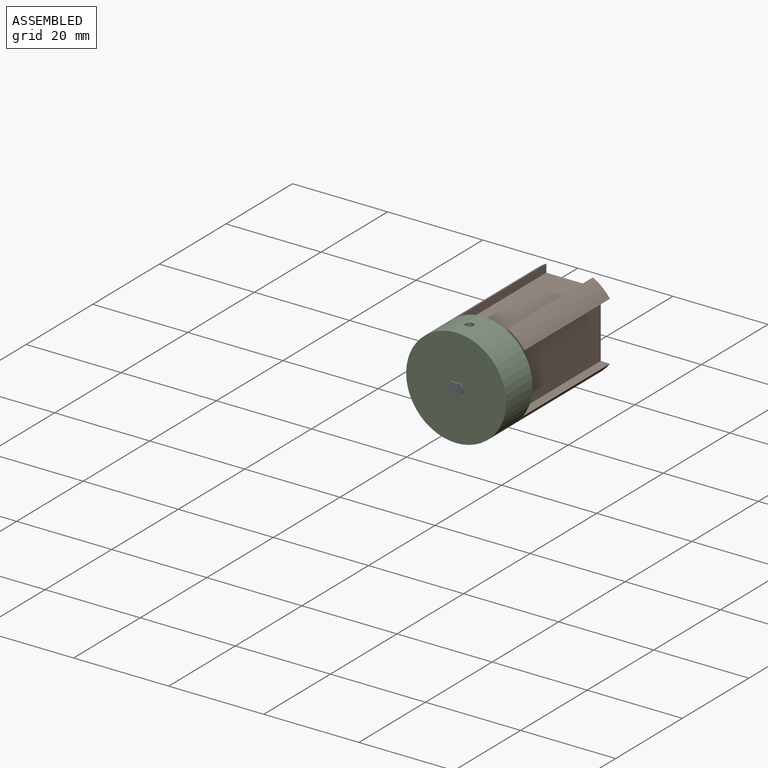
[diagram: assembled view]
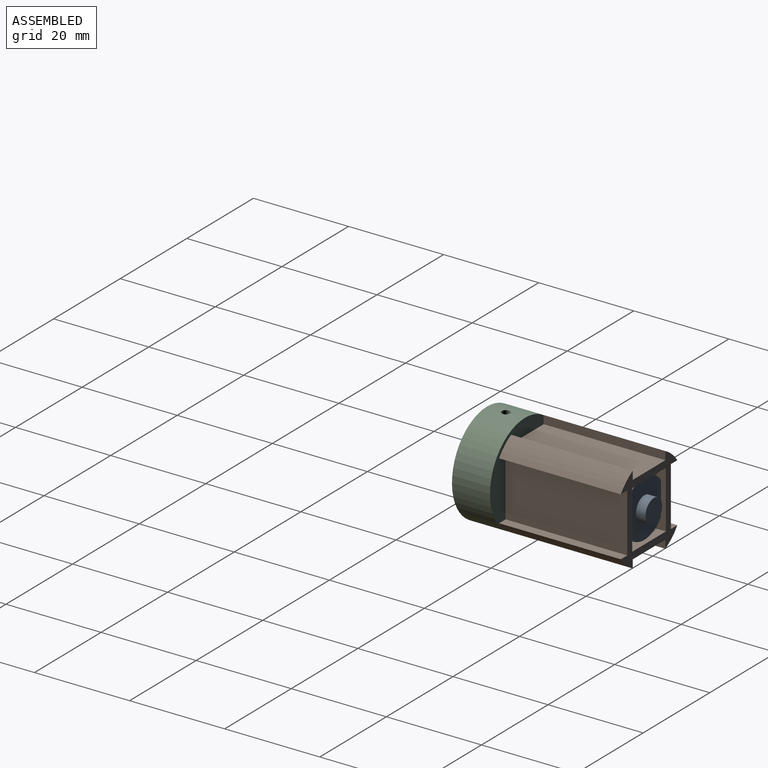
[diagram: assembled view, second angle]
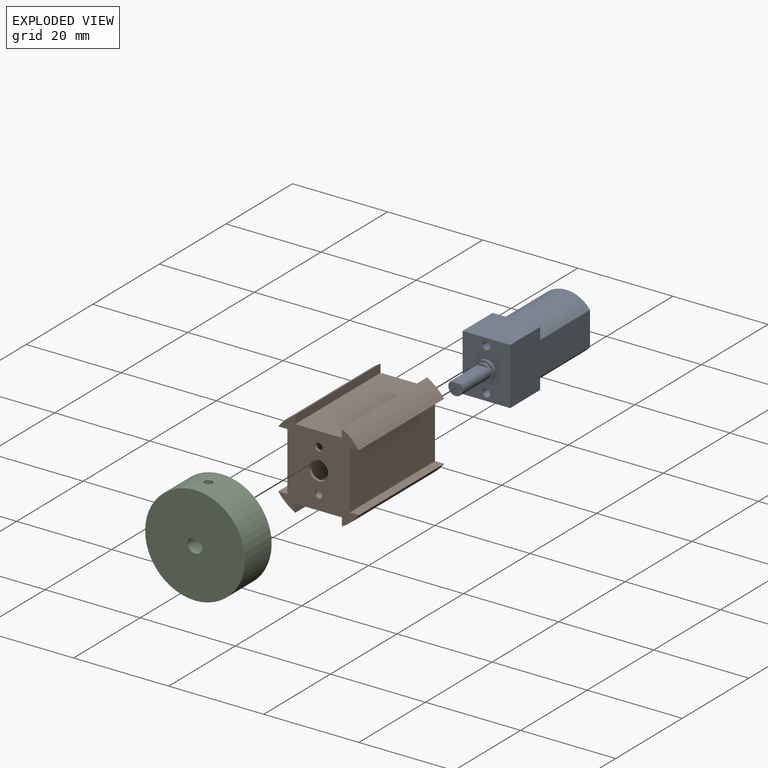
[diagram: exploded view]
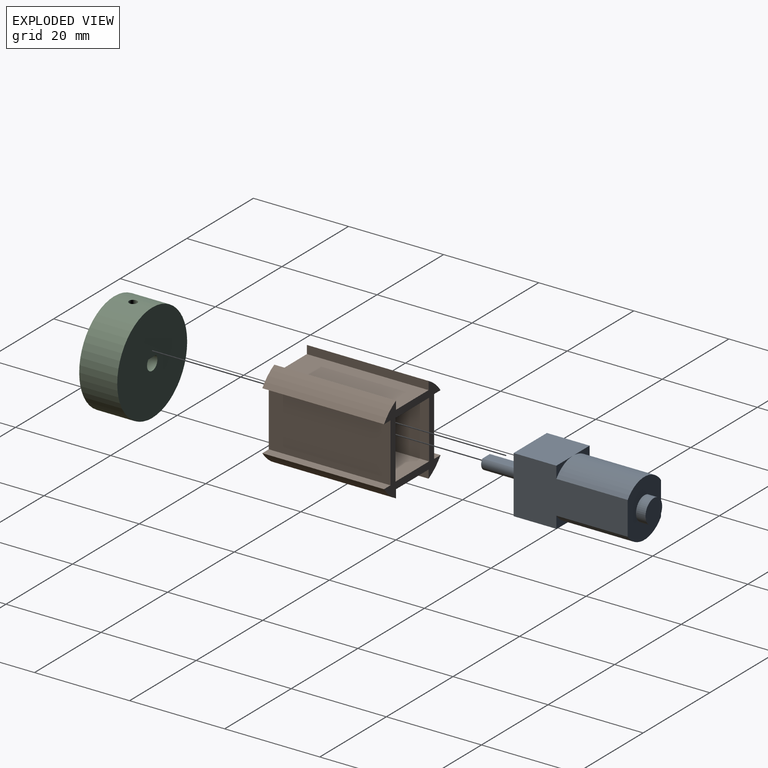
[diagram: exploded view, second angle]
ASSEMBLY  parts=3 mates=5
PART A: 24 faces, bbox 10x35.3x12 mm
  f0: plane 12x10mm, normal (0,-1,0), area 104mm2, adj f5,f6,f7,f8,f10,f21,f23
  f1: cylinder r=1.5mm len=8.67mm, axis (0,1,0), area 61.1mm2, adj f11,f12,f18,f19
  f2: plane 5x2.5mm, normal (0,1,0), area 3.8mm2, adj f5,f8,f13
  f3: plane 5x2.5mm, normal (0,1,0), area 3.8mm2, adj f7,f8,f13
  f4: plane 5x2.5mm, normal (0,1,0), area 3.8mm2, adj f6,f7,f14
  f5: plane 24x12mm, normal (-1,0,0), area 213mm2, adj f0,f2,f6,f8,f9,f13,f14,f15
  f6: plane 10x9mm, normal (0,0,-1), area 90mm2, adj f0,f4,f5,f7,f9
  f7: plane 24x12mm, normal (1,0,0), area 213mm2, adj f0,f3,f4,f6,f8,f13,f14,f15
  f8: plane 10x9mm, normal (0,0,1), area 90mm2, adj f0,f2,f3,f5,f7
  f9: plane 5x2.5mm, normal (0,1,0), area 3.8mm2, adj f5,f6,f14
  f10: cylinder r=1.95mm len=3.9mm, axis (0,1,0), area 7.4mm2, adj f0,f11
  f11: plane 3.9x3.9mm, normal (0,-1,0), area 4.9mm2, adj f1,f10
  f12: plane 3x2.5mm, normal (0,-1,0), area 6.3mm2, adj f1,f19
  f13: cylinder r=6.25mm len=15mm, axis (0,-1,0), area 173.9mm2, adj f2,f3,f5,f7,f15
  f14: cylinder r=6.25mm len=15mm, axis (0,-1,0), area 173.9mm2, adj f4,f5,f7,f9,f15
  f15: plane 12x10mm, normal (0,1,0), area 85.3mm2, adj f5,f7,f13,f14,f16
  f16: cylinder r=2.5mm len=5mm, axis (0,-1,0), area 31.4mm2, adj f15,f17
  f17: plane 5x5mm, normal (0,1,0), area 19.6mm2, adj f16
  f18: plane 2.24x0.5mm, normal (0,-1,0), area 0.8mm2, adj f1,f19
  f19: plane 8.17x2.24mm, normal (0,0,1), area 18.3mm2, adj f1,f12,f18
  f20: plane 1.6x1.6mm, normal (0,-1,0), area 2mm2, adj f21
  f21: cylinder r=0.8mm len=9mm, axis (0,-1,0), area 45.2mm2, adj f0,f20
  f22: plane 1.6x1.6mm, normal (0,-1,0), area 2mm2, adj f23
  f23: cylinder r=0.8mm len=9mm, axis (0,-1,0), area 45.2mm2, adj f0,f22
PART B: 26 faces, bbox 17x25.6x18.6 mm
  f0: plane 12.1x10.1mm, normal (0,1,0), area 105.6mm2, adj f16,f17,f19,f21,f22,f23,f24
  f1: plane 25.6x1.74mm, normal (1,0,0), area 44.5mm2, adj f2,f18,f20,f25
  f2: cylinder r=10.5mm len=25.6mm, axis (0,1,0), area 122.8mm2, adj f1,f3,f20,f25
  f3: plane 25.6x1.94mm, normal (0,0,-1), area 49.8mm2, adj f2,f4,f20,f25
  f4: plane 25.6x12.34mm, normal (-1,0,0), area 316mm2, adj f3,f5,f20,f25
  f5: plane 25.6x1.94mm, normal (0,0,1), area 49.8mm2, adj f4,f6,f20,f25
  f6: cylinder r=10.5mm len=25.6mm, axis (0,1,0), area 122.8mm2, adj f5,f7,f20,f25
  f7: plane 25.6x1.74mm, normal (1,0,0), area 44.5mm2, adj f6,f8,f20,f25
  f8: plane 25.6x9.8mm, normal (0,0,-1), area 250.8mm2, adj f7,f9,f20,f25
  f9: plane 25.6x1.74mm, normal (-1,0,0), area 44.5mm2, adj f8,f10,f20,f25
  f10: cylinder r=10.5mm len=25.6mm, axis (0,1,0), area 122.8mm2, adj f9,f11,f20,f25
  f11: plane 25.6x1.94mm, normal (0,0,1), area 49.8mm2, adj f10,f12,f20,f25
  f12: plane 25.6x12.34mm, normal (1,0,0), area 316mm2, adj f11,f13,f20,f25
  f13: plane 25.6x1.94mm, normal (0,0,-1), area 49.8mm2, adj f12,f14,f20,f25
  f14: cylinder r=10.5mm len=25.6mm, axis (0,1,0), area 122.8mm2, adj f13,f15,f20,f25
  f15: plane 25.6x1.74mm, normal (-1,0,0), area 44.5mm2, adj f14,f18,f20,f25
  f16: cylinder r=0.8mm len=1.6mm, axis (0,1,0), area 3mm2, adj f0,f20
  f17: cylinder r=0.8mm len=1.6mm, axis (0,1,0), area 3mm2, adj f0,f20
  f18: plane 25.6x9.8mm, normal (0,0,1), area 250.8mm2, adj f1,f15,f20,f25
  f19: cylinder r=2mm len=4mm, axis (0,1,0), area 7.5mm2, adj f0,f20
  f20: plane 18.57x16.99mm, normal (0,-1,0), area 198mm2, adj f1,f2,f3,f4,f5,f6,f7,f8
  f21: plane 25x12.1mm, normal (1,0,0), area 302.5mm2, adj f0,f22,f24,f25
  f22: plane 25x10.1mm, normal (0,0,-1), area 252.5mm2, adj f0,f21,f23,f25
  f23: plane 25x12.1mm, normal (-1,0,0), area 302.5mm2, adj f0,f22,f24,f25
  f24: plane 25x10.1mm, normal (0,0,1), area 252.5mm2, adj f0,f21,f23,f25
  f25: plane 18.57x16.99mm, normal (0,1,0), area 92.4mm2, adj f1,f2,f3,f4,f5,f6,f7,f8
PART C: 6 faces, bbox 21x8x21 mm
  f0: cylinder r=1.55mm len=8mm, axis (0,1,0), area 57.4mm2, adj f1,f3,f4
  f1: plane 8x2.28mm, normal (0,0,-1), area 16mm2, adj f0,f3,f4,f5
  f2: cylinder r=10.5mm len=21mm, axis (0,1,0), area 525.5mm2, adj f3,f4,f5
  f3: plane 21x21mm, normal (0,-1,0), area 339.6mm2, adj f0,f1,f2
  f4: plane 21x21mm, normal (0,1,0), area 339.6mm2, adj f0,f1,f2
  f5: cylinder r=0.85mm len=9.45mm, axis (0,0,-1), area 50.4mm2, adj f1,f2
PLACE A t=(-75.42,-42.55,-11.48)mm fixed
PLACE B rot(axis=(0,1,0),180deg) t=(-75.42,-42.55,-11.48)mm
PLACE C t=(-75.42,-43.65,-11.48)mm
MATE parallel C.f5 <-> A.f19  axis (0,0,-1) through (-75.42,-47.65,-10.43)mm
MATE planar A.f0 <-> B.f0  axis (0,-1,0) through (-70.42,-42.55,-11.48)mm
MATE slider A.f1 <-> C.f0  axis (0,1,0) through (-75.42,-43.15,-11.48)mm
MATE cylindrical B.f19 <-> A.f10  axis (0,1,0) through (-75.42,-42.85,-11.48)mm
MATE planar C.f2 <-> A.f18  axis (0,1,0) through (-75.42,-43.65,-11.48)mm
